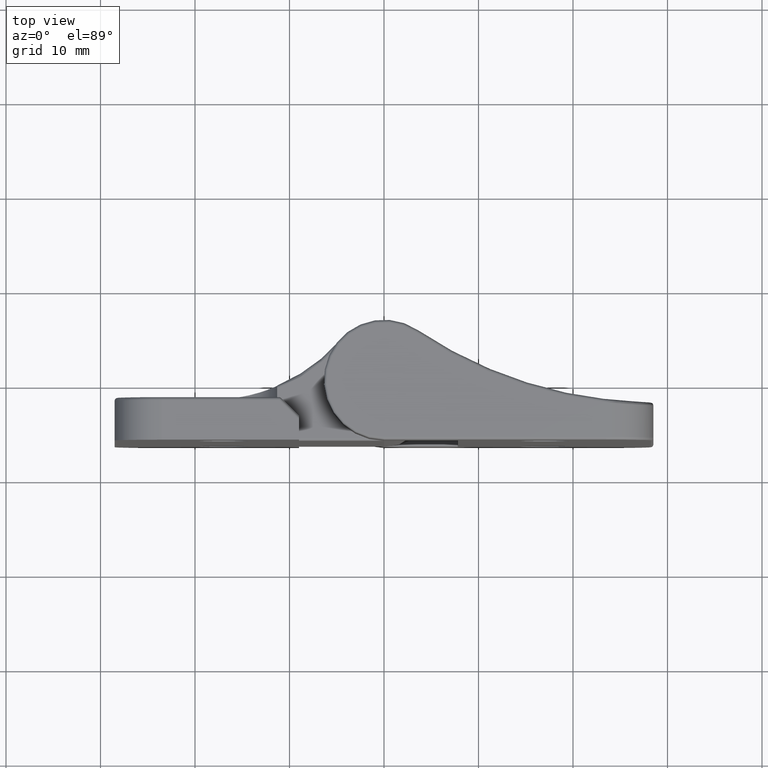
[diagram: clean part render]
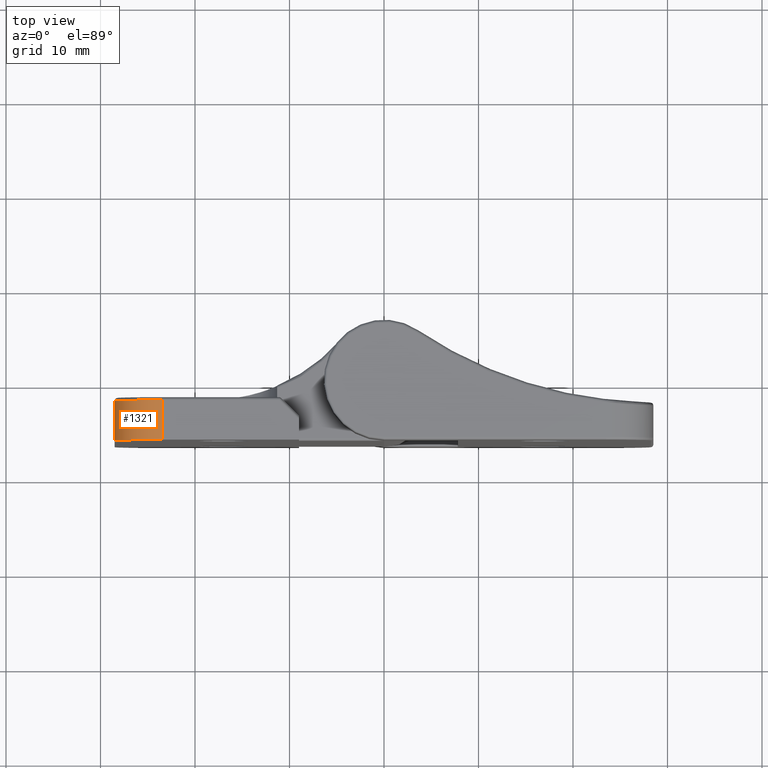
[diagram: same view with one face highlighted and labeled with its STEP entity id]
A machine part, top view. The second image highlights one B-rep face of the part: STEP entity #1321.
In plain terms, the highlighted cylindrical surface (partial cylindrical patch) has radius 5 mm, axis along (0, -1, 0).
Its self-contained STEP definition (entity closure, byte-faithful):
#122=LINE('',#2092,#217);
#124=LINE('',#2096,#219);
#217=VECTOR('',#1653,4.2);
#219=VECTOR('',#1657,4.2);
#307=CYLINDRICAL_SURFACE('',#1427,5.);
#347=FACE_OUTER_BOUND('',#430,.T.);
#430=EDGE_LOOP('',(#969,#970,#971,#972));
#523=CIRCLE('',#1411,5.);
#531=CIRCLE('',#1428,5.);
#608=VERTEX_POINT('',#2043);
#610=VERTEX_POINT('',#2049);
#623=VERTEX_POINT('',#2091);
#624=VERTEX_POINT('',#2095);
#737=EDGE_CURVE('',#610,#608,#523,.T.);
#758=EDGE_CURVE('',#623,#608,#122,.T.);
#760=EDGE_CURVE('',#610,#624,#124,.T.);
#761=EDGE_CURVE('',#624,#623,#531,.T.);
#969=ORIENTED_EDGE('',*,*,#737,.F.);
#970=ORIENTED_EDGE('',*,*,#760,.T.);
#971=ORIENTED_EDGE('',*,*,#761,.T.);
#972=ORIENTED_EDGE('',*,*,#758,.T.);
#1321=ADVANCED_FACE('',(#347),#307,.T.);
#1411=AXIS2_PLACEMENT_3D('',#2051,#1609,#1610);
#1427=AXIS2_PLACEMENT_3D('',#2094,#1655,#1656);
#1428=AXIS2_PLACEMENT_3D('',#2097,#1658,#1659);
#1609=DIRECTION('center_axis',(-3.48620756524808E-16,1.,0.));
#1610=DIRECTION('ref_axis',(-0.707106781186548,-2.46512101001076E-16,0.707106781186548));
#1653=DIRECTION('',(0.,1.,0.));
#1655=DIRECTION('center_axis',(0.,-1.,0.));
#1656=DIRECTION('ref_axis',(-0.707106781186548,0.,0.707106781186548));
#1657=DIRECTION('',(0.,-1.,0.));
#1658=DIRECTION('center_axis',(-4.67462326157961E-16,1.,0.));
#1659=DIRECTION('ref_axis',(-0.707106781186548,-3.30545780775532E-16,0.707106781186548));
#2043=CARTESIAN_POINT('',(-23.5,-2.15000000000001,25.4));
#2049=CARTESIAN_POINT('',(-28.5,-2.15000000000001,20.4));
#2051=CARTESIAN_POINT('Origin',(-23.5,-2.15000000000001,20.4));
#2091=CARTESIAN_POINT('',(-23.5,-6.35000000000001,25.4));
#2092=CARTESIAN_POINT('',(-23.5,-2.23717669043261,25.4));
#2094=CARTESIAN_POINT('Origin',(-23.5,-2.23717669043261,20.4));
#2095=CARTESIAN_POINT('',(-28.5,-6.35000000000001,20.4));
#2096=CARTESIAN_POINT('',(-28.5,-2.23717669043261,20.4));
#2097=CARTESIAN_POINT('Origin',(-23.5,-6.35000000000001,20.4));